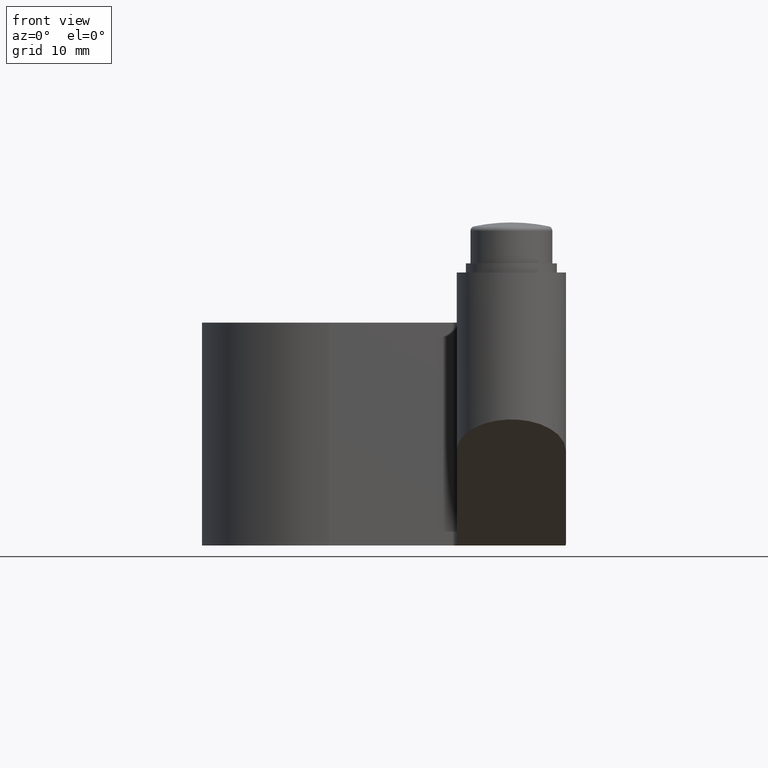
[diagram: clean part render]
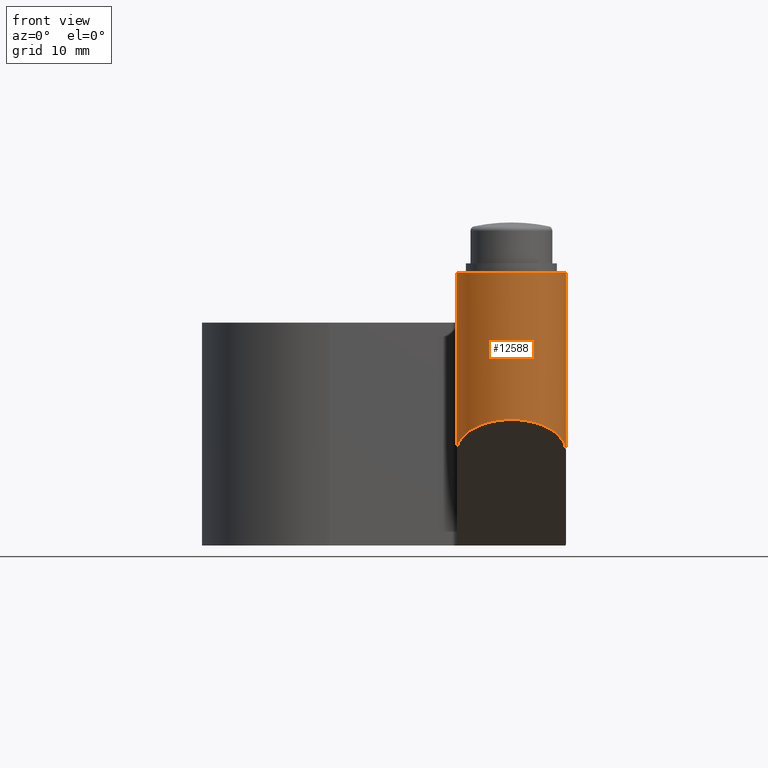
[diagram: same view with one face highlighted and labeled with its STEP entity id]
A machine part, front view. The second image highlights one B-rep face of the part: STEP entity #12588.
In plain terms, the highlighted cylindrical surface (partial cylindrical patch) has radius 6 mm, axis along (0, 0, -1).
Its self-contained STEP definition (entity closure, byte-faithful):
#2061 = LINE ( 'NONE', #15908, #5729 ) ;
#2527 = CARTESIAN_POINT ( 'NONE',  ( 20.00000000000000400, -32.00000000000000000, 17.75000000000000400 ) ) ;
#2732 = DIRECTION ( 'NONE',  ( 0.0000000000000000000, 0.0000000000000000000, 1.000000000000000000 ) ) ;
#2921 = VERTEX_POINT ( 'NONE', #11570 ) ;
#3056 = CARTESIAN_POINT ( 'NONE',  ( 14.00000000000000500, -32.00000000000000000, 12.25000000000000000 ) ) ;
#3962 = CARTESIAN_POINT ( 'NONE',  ( 26.00000000000000700, -32.00000000000000000, -1.857695154586880900 ) ) ;
#4346 =( BOUNDED_CURVE ( )  B_SPLINE_CURVE ( 3, ( #3962, #9918, #14805, #11630 ),
 .UNSPECIFIED., .F., .F. ) 
 B_SPLINE_CURVE_WITH_KNOTS ( ( 4, 4 ),
 ( 1.570796326794896800, 4.712388980384689700 ),
 .UNSPECIFIED. ) 
 CURVE ( )  GEOMETRIC_REPRESENTATION_ITEM ( )  RATIONAL_B_SPLINE_CURVE ( ( 1.000000000000000000, 0.3333333333333333700, 0.3333333333333333700, 1.000000000000000000 ) ) 
 REPRESENTATION_ITEM ( '' )  );
#4428 = CARTESIAN_POINT ( 'NONE',  ( 14.00000000000000500, -32.00000000000000000, 17.75000000000000400 ) ) ;
#4870 = DIRECTION ( 'NONE',  ( -1.000000000000000000, 0.0000000000000000000, 0.0000000000000000000 ) ) ;
#5051 = VERTEX_POINT ( 'NONE', #5527 ) ;
#5527 = CARTESIAN_POINT ( 'NONE',  ( 14.00000000000000500, -32.00000000000000000, -1.857695154586884500 ) ) ;
#5729 = VECTOR ( 'NONE', #6625, 1000.000000000000000 ) ;
#6204 = ORIENTED_EDGE ( 'NONE', *, *, #8967, .F. ) ;
#6461 = EDGE_LOOP ( 'NONE', ( #17788, #15485, #6204, #15278 ) ) ;
#6625 = DIRECTION ( 'NONE',  ( 0.0000000000000000000, 0.0000000000000000000, -1.000000000000000000 ) ) ;
#8829 = LINE ( 'NONE', #3056, #12258 ) ;
#8967 = EDGE_CURVE ( 'NONE', #18439, #2921, #12574, .T. ) ;
#9001 = AXIS2_PLACEMENT_3D ( 'NONE', #2527, #2732, #11825 ) ;
#9169 = CARTESIAN_POINT ( 'NONE',  ( 20.00000000000000700, -32.00000000000000000, 12.25000000000000000 ) ) ;
#9273 = DIRECTION ( 'NONE',  ( -0.0000000000000000000, -0.0000000000000000000, 1.000000000000000000 ) ) ;
#9360 = DIRECTION ( 'NONE',  ( 0.0000000000000000000, 0.0000000000000000000, -1.000000000000000000 ) ) ;
#9918 = CARTESIAN_POINT ( 'NONE',  ( 26.00000000000001800, -44.00000000000000700, 5.070508075688529500 ) ) ;
#10135 = EDGE_CURVE ( 'NONE', #11594, #5051, #4346, .T. ) ;
#11570 = CARTESIAN_POINT ( 'NONE',  ( 26.00000000000000700, -32.00000000000000000, 17.75000000000000400 ) ) ;
#11594 = VERTEX_POINT ( 'NONE', #17851 ) ;
#11630 = CARTESIAN_POINT ( 'NONE',  ( 14.00000000000000500, -32.00000000000000000, -1.857695154586884500 ) ) ;
#11825 = DIRECTION ( 'NONE',  ( 1.000000000000000000, 0.0000000000000000000, 0.0000000000000000000 ) ) ;
#12186 = CYLINDRICAL_SURFACE ( 'NONE', #12190, 6.000000000000000000 ) ;
#12190 = AXIS2_PLACEMENT_3D ( 'NONE', #9169, #9360, #4870 ) ;
#12258 = VECTOR ( 'NONE', #9273, 1000.000000000000000 ) ;
#12574 = CIRCLE ( 'NONE', #9001, 5.999999999999998200 ) ;
#12588 = ADVANCED_FACE ( 'NONE', ( #18482 ), #12186, .T. ) ;
#14805 = CARTESIAN_POINT ( 'NONE',  ( 14.00000000000001100, -44.00000000000000700, 5.070508075688529500 ) ) ;
#15278 = ORIENTED_EDGE ( 'NONE', *, *, #19579, .F. ) ;
#15485 = ORIENTED_EDGE ( 'NONE', *, *, #17755, .F. ) ;
#15908 = CARTESIAN_POINT ( 'NONE',  ( 26.00000000000000700, -32.00000000000000000, 12.25000000000000000 ) ) ;
#17755 = EDGE_CURVE ( 'NONE', #2921, #11594, #2061, .T. ) ;
#17788 = ORIENTED_EDGE ( 'NONE', *, *, #10135, .F. ) ;
#17851 = CARTESIAN_POINT ( 'NONE',  ( 26.00000000000000700, -32.00000000000000000, -1.857695154586880900 ) ) ;
#18439 = VERTEX_POINT ( 'NONE', #4428 ) ;
#18482 = FACE_OUTER_BOUND ( 'NONE', #6461, .T. ) ;
#19579 = EDGE_CURVE ( 'NONE', #5051, #18439, #8829, .T. ) ;